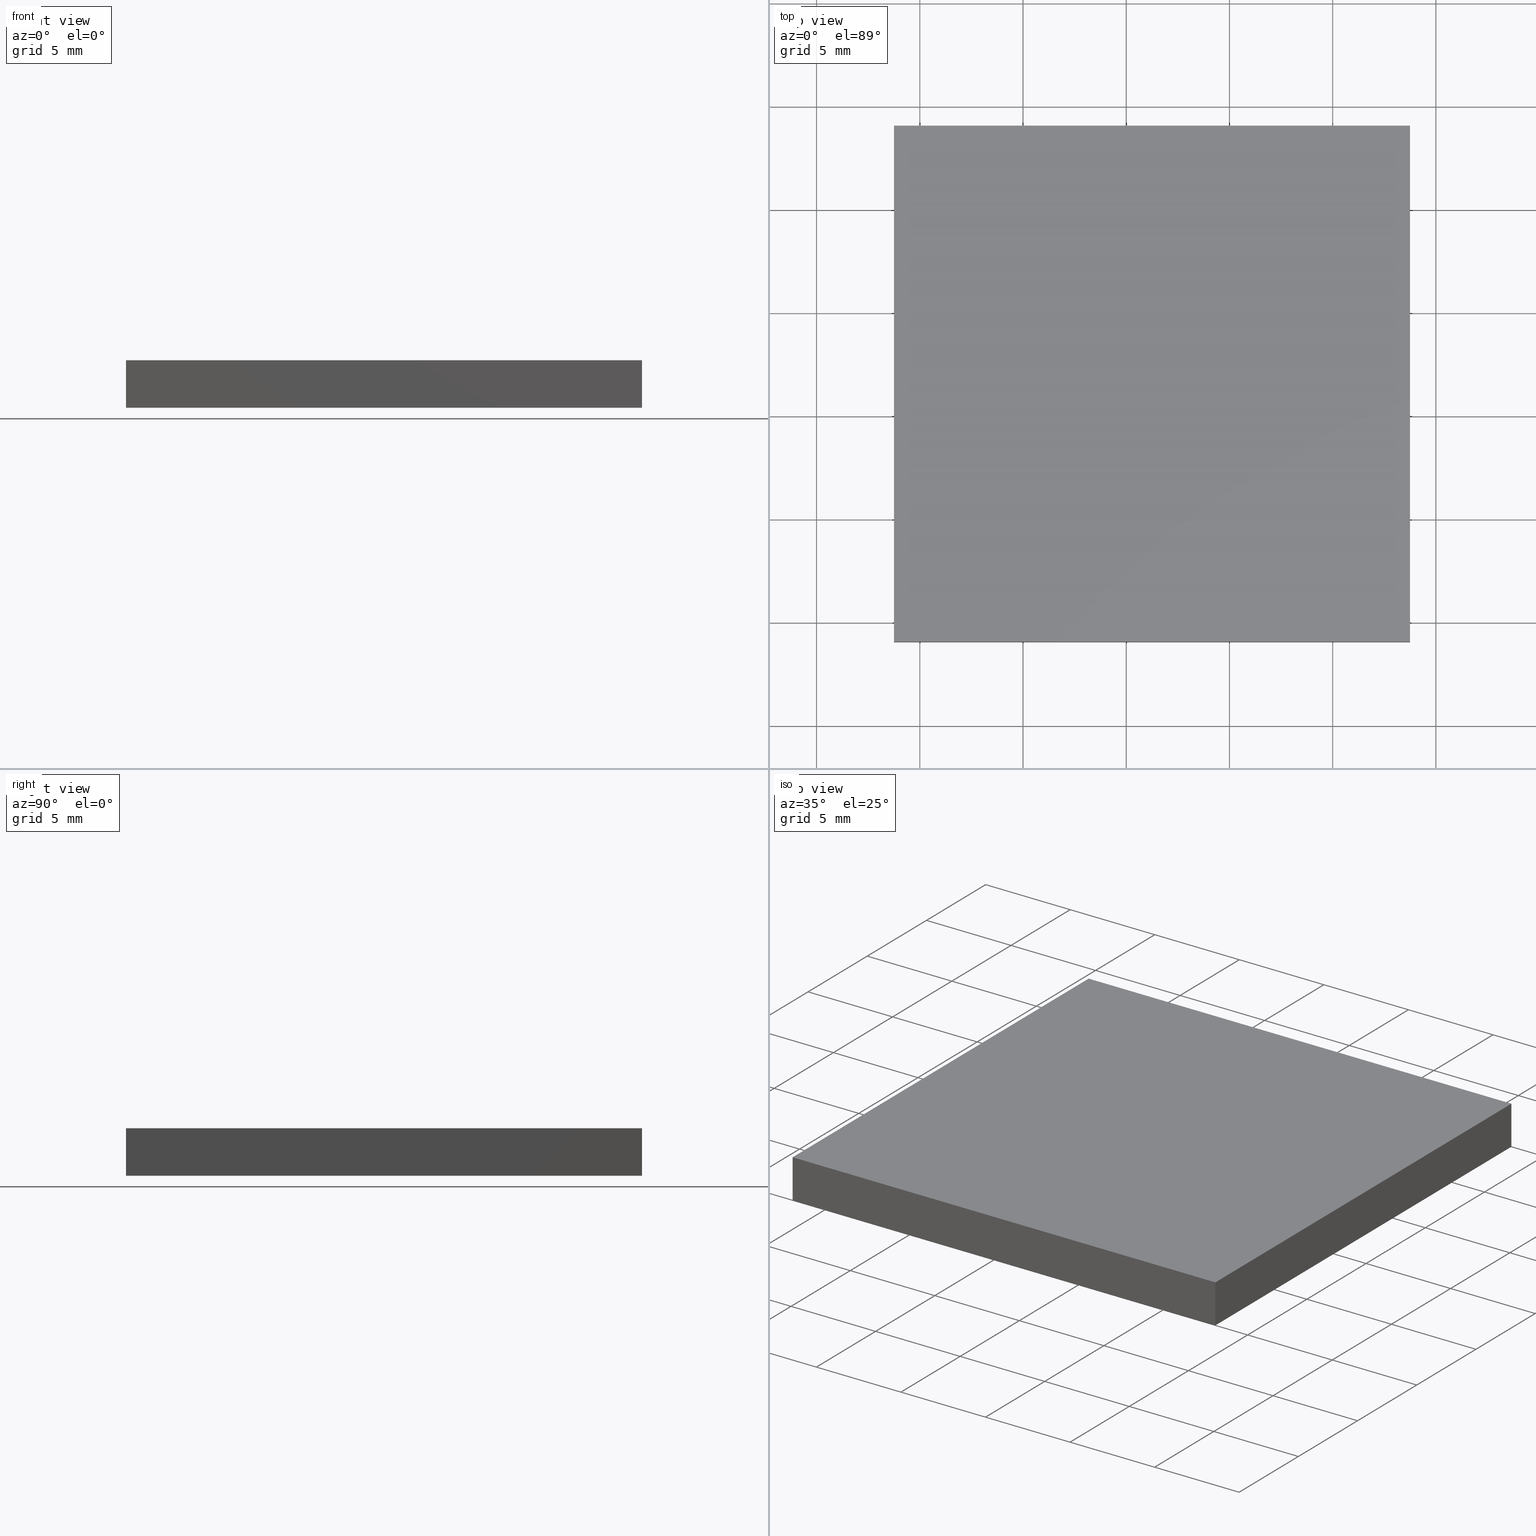
[diagram: canonical four-view strip — front | top / right | iso, engineering-drawing reading convention]
A machine part, canonical four-view strip (front | top / right | iso — engineering-drawing reading convention). The complete STEP part file that produces these views, byte-faithful:
ISO-10303-21;
HEADER;
FILE_DESCRIPTION (( 'STEP AP214' ),
    '1' );
FILE_NAME ('302517.STEP',
    '2019-08-13T06:06:55',
    ( '' ),
    ( '' ),
    'SwSTEP 2.0',
    'SolidWorks 2016',
    '' );
FILE_SCHEMA (( 'AUTOMOTIVE_DESIGN' ));
ENDSEC;

DATA;
#1 = DIRECTION ( 'NONE',  ( 1.000000000000000000, 0.0000000000000000000, 0.0000000000000000000 ) ) ;
#2 = EDGE_CURVE ( 'NONE', #193, #28, #165, .T. ) ;
#3 = EDGE_LOOP ( 'NONE', ( #112, #137, #180, #162 ) ) ;
#4 = VECTOR ( 'NONE', #199, 1000.000000000000000 ) ;
#5 = ORIENTED_EDGE ( 'NONE', *, *, #104, .F. ) ;
#6 = CARTESIAN_POINT ( 'NONE',  ( 113.7479357758850800, 49.06324183452660000, 2.299999999999999800 ) ) ;
#7 = ADVANCED_FACE ( 'NONE', ( #26 ), #86, .F. ) ;
#8 = ORIENTED_EDGE ( 'NONE', *, *, #2, .T. ) ;
#9 = DIRECTION ( 'NONE',  ( 0.0000000000000000000, -0.0000000000000000000, 1.000000000000000000 ) ) ;
#10 = DIRECTION ( 'NONE',  ( -5.551115123125785700E-016, -1.000000000000000000, 0.0000000000000000000 ) ) ;
#11 = CARTESIAN_POINT ( 'NONE',  ( 113.7479357758850700, 74.06324183452659300, 2.299999999999999800 ) ) ;
#12 = DIRECTION ( 'NONE',  ( -1.000000000000000000, -0.0000000000000000000, -0.0000000000000000000 ) ) ;
#13 = ORIENTED_EDGE ( 'NONE', *, *, #144, .T. ) ;
#14 =( NAMED_UNIT ( * ) PLANE_ANGLE_UNIT ( ) SI_UNIT ( $, .RADIAN. ) );
#15 = LINE ( 'NONE', #110, #4 ) ;
#16 = EDGE_LOOP ( 'NONE', ( #160, #146, #176, #5 ) ) ;
#17 = CARTESIAN_POINT ( 'NONE',  ( 88.74793577588509700, 74.06324183452659300, 2.299999999999999800 ) ) ;
#18 = LINE ( 'NONE', #69, #43 ) ;
#19 = AXIS2_PLACEMENT_3D ( 'NONE', #121, #38, #9 ) ;
#20 = ADVANCED_BREP_SHAPE_REPRESENTATION ( '302517', ( #177, #138 ), #178 ) ;
#21 = SURFACE_STYLE_FILL_AREA ( #154 ) ;
#22 = CARTESIAN_POINT ( 'NONE',  ( 88.74793577588509700, 74.06324183452659300, 2.299999999999999800 ) ) ;
#23 = DIRECTION ( 'NONE',  ( -0.0000000000000000000, -0.0000000000000000000, -1.000000000000000000 ) ) ;
#24 = PLANE ( 'NONE',  #128 ) ;
#25 = VECTOR ( 'NONE', #23, 1000.000000000000000 ) ;
#26 = FACE_OUTER_BOUND ( 'NONE', #16, .T. ) ;
#27 = APPLICATION_PROTOCOL_DEFINITION ( 'draft international standard', 'automotive_design', 1998, #79 ) ;
#28 = VERTEX_POINT ( 'NONE', #6 ) ;
#29 =( NAMED_UNIT ( * ) SI_UNIT ( $, .STERADIAN. ) SOLID_ANGLE_UNIT ( ) );
#30 = ORIENTED_EDGE ( 'NONE', *, *, #163, .T. ) ;
#31 = AXIS2_PLACEMENT_3D ( 'NONE', #35, #183, #91 ) ;
#32 = VECTOR ( 'NONE', #169, 1000.000000000000000 ) ;
#33 = DIRECTION ( 'NONE',  ( -0.0000000000000000000, 0.0000000000000000000, 1.000000000000000000 ) ) ;
#34 = PLANE ( 'NONE',  #148 ) ;
#35 = CARTESIAN_POINT ( 'NONE',  ( 0.0000000000000000000, 0.0000000000000000000, 2.299999999999999800 ) ) ;
#36 = DIRECTION ( 'NONE',  ( -5.551115123125785700E-016, -1.000000000000000000, 0.0000000000000000000 ) ) ;
#37 = CLOSED_SHELL ( 'NONE', ( #164, #50, #103, #71, #54, #7 ) ) ;
#38 = DIRECTION ( 'NONE',  ( 0.0000000000000000000, 1.000000000000000000, 0.0000000000000000000 ) ) ;
#39 = VERTEX_POINT ( 'NONE', #46 ) ;
#40 = PRODUCT_CONTEXT ( 'NONE', #201, 'mechanical' ) ;
#41 = SURFACE_STYLE_USAGE ( .BOTH. , #136 ) ;
#42 = COLOUR_RGB ( '',1.000000000000000000, 1.000000000000000000, 1.000000000000000000 ) ;
#43 = VECTOR ( 'NONE', #52, 1000.000000000000000 ) ;
#44 = FACE_OUTER_BOUND ( 'NONE', #152, .T. ) ;
#45 = EDGE_CURVE ( 'NONE', #39, #61, #18, .T. ) ;
#46 = CARTESIAN_POINT ( 'NONE',  ( 113.7479357758850700, 74.06324183452659300, 2.299999999999999800 ) ) ;
#47 = PLANE ( 'NONE',  #31 ) ;
#48 = PRODUCT_DEFINITION_FORMATION_WITH_SPECIFIED_SOURCE ( '�κ�', '', #56, .NOT_KNOWN. ) ;
#49 = VECTOR ( 'NONE', #10, 1000.000000000000000 ) ;
#50 = ADVANCED_FACE ( 'NONE', ( #113 ), #90, .F. ) ;
#51 = ORIENTED_EDGE ( 'NONE', *, *, #150, .T. ) ;
#52 = DIRECTION ( 'NONE',  ( -1.000000000000000000, -0.0000000000000000000, -0.0000000000000000000 ) ) ;
#53 = CARTESIAN_POINT ( 'NONE',  ( 88.74793577588508200, 49.06324183452660000, 0.0000000000000000000 ) ) ;
#54 = ADVANCED_FACE ( 'NONE', ( #158 ), #47, .T. ) ;
#55 = CARTESIAN_POINT ( 'NONE',  ( 113.7479357758850800, 49.06324183452660000, 2.299999999999999800 ) ) ;
#56 = PRODUCT ( '302517', '302517', '', ( #40 ) ) ;
#57 = CARTESIAN_POINT ( 'NONE',  ( 113.7479357758850700, 74.06324183452659300, 2.299999999999999800 ) ) ;
#58 = LINE ( 'NONE', #55, #96 ) ;
#59 = DIRECTION ( 'NONE',  ( 1.000000000000000000, -5.551115123125785700E-016, 0.0000000000000000000 ) ) ;
#60 = VECTOR ( 'NONE', #166, 1000.000000000000000 ) ;
#61 = VERTEX_POINT ( 'NONE', #196 ) ;
#62 =( NAMED_UNIT ( * ) PLANE_ANGLE_UNIT ( ) SI_UNIT ( $, .RADIAN. ) );
#63 = APPLICATION_PROTOCOL_DEFINITION ( 'draft international standard', 'automotive_design', 1998, #201 ) ;
#64 = SURFACE_STYLE_USAGE ( .BOTH. , #157 ) ;
#65 = SURFACE_STYLE_FILL_AREA ( #98 ) ;
#66 = EDGE_CURVE ( 'NONE', #61, #126, #125, .T. ) ;
#67 = LINE ( 'NONE', #11, #60 ) ;
#68 = FACE_OUTER_BOUND ( 'NONE', #3, .T. ) ;
#69 = CARTESIAN_POINT ( 'NONE',  ( 88.74793577588509700, 74.06324183452659300, 2.299999999999999800 ) ) ;
#70 = VERTEX_POINT ( 'NONE', #185 ) ;
#71 = ADVANCED_FACE ( 'NONE', ( #81 ), #24, .F. ) ;
#72 = DIRECTION ( 'NONE',  ( -0.0000000000000000000, -0.0000000000000000000, -1.000000000000000000 ) ) ;
#73 = PLANE ( 'NONE',  #194 ) ;
#74 = ORIENTED_EDGE ( 'NONE', *, *, #104, .T. ) ;
#75 =( LENGTH_UNIT ( ) NAMED_UNIT ( * ) SI_UNIT ( .MILLI., .METRE. ) );
#76 =( GEOMETRIC_REPRESENTATION_CONTEXT ( 3 ) GLOBAL_UNCERTAINTY_ASSIGNED_CONTEXT ( ( #190 ) ) GLOBAL_UNIT_ASSIGNED_CONTEXT ( ( #173, #78, #29 ) ) REPRESENTATION_CONTEXT ( 'NONE', 'WORKASPACE' ) );
#77 = EDGE_CURVE ( 'NONE', #193, #70, #15, .T. ) ;
#78 =( NAMED_UNIT ( * ) PLANE_ANGLE_UNIT ( ) SI_UNIT ( $, .RADIAN. ) );
#79 = APPLICATION_CONTEXT ( 'automotive_design' ) ;
#80 = PRESENTATION_LAYER_ASSIGNMENT (  '', '', ( #184 ) ) ;
#81 = FACE_OUTER_BOUND ( 'NONE', #115, .T. ) ;
#82 = ORIENTED_EDGE ( 'NONE', *, *, #45, .T. ) ;
#83 =( GEOMETRIC_REPRESENTATION_CONTEXT ( 3 ) GLOBAL_UNCERTAINTY_ASSIGNED_CONTEXT ( ( #172 ) ) GLOBAL_UNIT_ASSIGNED_CONTEXT ( ( #139, #14, #140 ) ) REPRESENTATION_CONTEXT ( 'NONE', 'WORKASPACE' ) );
#84 = PRODUCT_DEFINITION_CONTEXT ( 'detailed design', #79, 'design' ) ;
#85 = ORIENTED_EDGE ( 'NONE', *, *, #77, .T. ) ;
#86 = PLANE ( 'NONE',  #116 ) ;
#87 = DIRECTION ( 'NONE',  ( 1.000000000000000000, 0.0000000000000000000, 0.0000000000000000000 ) ) ;
#88 = EDGE_LOOP ( 'NONE', ( #74, #132, #102, #85 ) ) ;
#89 = EDGE_CURVE ( 'NONE', #195, #126, #187, .T. ) ;
#90 = PLANE ( 'NONE',  #19 ) ;
#91 = DIRECTION ( 'NONE',  ( 1.000000000000000000, 0.0000000000000000000, 0.0000000000000000000 ) ) ;
#92 = CARTESIAN_POINT ( 'NONE',  ( 88.74793577588509700, 74.06324183452659300, 0.0000000000000000000 ) ) ;
#93 = DIRECTION ( 'NONE',  ( -1.000000000000000000, -5.551115123125785700E-016, 0.0000000000000000000 ) ) ;
#94 = MECHANICAL_DESIGN_GEOMETRIC_PRESENTATION_REPRESENTATION (  '', ( #184 ), #76 ) ;
#95 = DIRECTION ( 'NONE',  ( 0.0000000000000000000, -0.0000000000000000000, -1.000000000000000000 ) ) ;
#96 = VECTOR ( 'NONE', #135, 1000.000000000000000 ) ;
#97 = ORIENTED_EDGE ( 'NONE', *, *, #77, .F. ) ;
#98 = FILL_AREA_STYLE ('',( #153 ) ) ;
#99 = PRODUCT_RELATED_PRODUCT_CATEGORY ( 'part', '', ( #56 ) ) ;
#100 = EDGE_CURVE ( 'NONE', #159, #195, #101, .T. ) ;
#101 = LINE ( 'NONE', #133, #32 ) ;
#102 = ORIENTED_EDGE ( 'NONE', *, *, #2, .F. ) ;
#103 = ADVANCED_FACE ( 'NONE', ( #68 ), #34, .F. ) ;
#104 = EDGE_CURVE ( 'NONE', #70, #159, #161, .T. ) ;
#105 = LINE ( 'NONE', #198, #49 ) ;
#106 = CARTESIAN_POINT ( 'NONE',  ( 88.74793577588508200, 49.06324183452660000, 2.299999999999999800 ) ) ;
#107 = COLOUR_RGB ( '',1.000000000000000000, 1.000000000000000000, 1.000000000000000000 ) ;
#108 = VECTOR ( 'NONE', #149, 1000.000000000000000 ) ;
#109 = CARTESIAN_POINT ( 'NONE',  ( 113.7479357758850800, 49.06324183452660000, 0.0000000000000000000 ) ) ;
#110 = CARTESIAN_POINT ( 'NONE',  ( 88.74793577588508200, 49.06324183452660000, 2.299999999999999800 ) ) ;
#111 = LINE ( 'NONE', #134, #175 ) ;
#112 = ORIENTED_EDGE ( 'NONE', *, *, #100, .T. ) ;
#113 = FACE_OUTER_BOUND ( 'NONE', #88, .T. ) ;
#114 = VECTOR ( 'NONE', #12, 1000.000000000000000 ) ;
#115 = EDGE_LOOP ( 'NONE', ( #127, #130, #124, #171 ) ) ;
#116 = AXIS2_PLACEMENT_3D ( 'NONE', #147, #33, #131 ) ;
#117 = DIRECTION ( 'NONE',  ( 5.551115123125785700E-016, -1.000000000000000000, 0.0000000000000000000 ) ) ;
#118 = FILL_AREA_STYLE_COLOUR ( '', #107 ) ;
#119 = CARTESIAN_POINT ( 'NONE',  ( 88.74793577588509700, 74.06324183452659300, 2.299999999999999800 ) ) ;
#120 = ORIENTED_EDGE ( 'NONE', *, *, #66, .T. ) ;
#121 = CARTESIAN_POINT ( 'NONE',  ( 88.74793577588508200, 49.06324183452660000, 2.299999999999999800 ) ) ;
#122 = CARTESIAN_POINT ( 'NONE',  ( 113.7479357758850700, 74.06324183452659300, 0.0000000000000000000 ) ) ;
#123 = PRODUCT_DEFINITION_SHAPE ( 'NONE', 'NONE',  #181 ) ;
#124 = ORIENTED_EDGE ( 'NONE', *, *, #45, .F. ) ;
#125 = LINE ( 'NONE', #17, #129 ) ;
#126 = VERTEX_POINT ( 'NONE', #92 ) ;
#127 = ORIENTED_EDGE ( 'NONE', *, *, #89, .T. ) ;
#128 = AXIS2_PLACEMENT_3D ( 'NONE', #22, #200, #95 ) ;
#129 = VECTOR ( 'NONE', #72, 1000.000000000000000 ) ;
#130 = ORIENTED_EDGE ( 'NONE', *, *, #66, .F. ) ;
#131 = DIRECTION ( 'NONE',  ( 1.000000000000000000, 0.0000000000000000000, 0.0000000000000000000 ) ) ;
#132 = ORIENTED_EDGE ( 'NONE', *, *, #143, .F. ) ;
#133 = CARTESIAN_POINT ( 'NONE',  ( 113.7479357758850700, 74.06324183452659300, 0.0000000000000000000 ) ) ;
#134 = CARTESIAN_POINT ( 'NONE',  ( 88.74793577588509700, 74.06324183452659300, 0.0000000000000000000 ) ) ;
#135 = DIRECTION ( 'NONE',  ( -0.0000000000000000000, -0.0000000000000000000, -1.000000000000000000 ) ) ;
#136 = SURFACE_SIDE_STYLE ('',( #65 ) ) ;
#137 = ORIENTED_EDGE ( 'NONE', *, *, #155, .F. ) ;
#138 = AXIS2_PLACEMENT_3D ( 'NONE', #156, #202, #1 ) ;
#139 =( LENGTH_UNIT ( ) NAMED_UNIT ( * ) SI_UNIT ( .MILLI., .METRE. ) );
#140 =( NAMED_UNIT ( * ) SI_UNIT ( $, .STERADIAN. ) SOLID_ANGLE_UNIT ( ) );
#141 =( NAMED_UNIT ( * ) SI_UNIT ( $, .STERADIAN. ) SOLID_ANGLE_UNIT ( ) );
#142 = UNCERTAINTY_MEASURE_WITH_UNIT (LENGTH_MEASURE( 1.000000000000000100E-005 ), #75, 'distance_accuracy_value', 'NONE');
#143 = EDGE_CURVE ( 'NONE', #28, #159, #58, .T. ) ;
#144 = EDGE_CURVE ( 'NONE', #28, #39, #67, .T. ) ;
#145 = MECHANICAL_DESIGN_GEOMETRIC_PRESENTATION_REPRESENTATION (  '', ( #192 ), #83 ) ;
#146 = ORIENTED_EDGE ( 'NONE', *, *, #89, .F. ) ;
#147 = CARTESIAN_POINT ( 'NONE',  ( 0.0000000000000000000, 0.0000000000000000000, 0.0000000000000000000 ) ) ;
#148 = AXIS2_PLACEMENT_3D ( 'NONE', #182, #93, #117 ) ;
#149 = DIRECTION ( 'NONE',  ( 1.000000000000000000, 0.0000000000000000000, 0.0000000000000000000 ) ) ;
#150 = EDGE_CURVE ( 'NONE', #61, #193, #105, .T. ) ;
#151 = CARTESIAN_POINT ( 'NONE',  ( 88.74793577588508200, 49.06324183452660000, 2.299999999999999800 ) ) ;
#152 = EDGE_LOOP ( 'NONE', ( #30, #97, #174, #120 ) ) ;
#153 = FILL_AREA_STYLE_COLOUR ( '', #42 ) ;
#154 = FILL_AREA_STYLE ('',( #118 ) ) ;
#155 = EDGE_CURVE ( 'NONE', #39, #195, #179, .T. ) ;
#156 = CARTESIAN_POINT ( 'NONE',  ( 0.0000000000000000000, 0.0000000000000000000, 0.0000000000000000000 ) ) ;
#157 = SURFACE_SIDE_STYLE ('',( #21 ) ) ;
#158 = FACE_OUTER_BOUND ( 'NONE', #197, .T. ) ;
#159 = VERTEX_POINT ( 'NONE', #109 ) ;
#160 = ORIENTED_EDGE ( 'NONE', *, *, #163, .F. ) ;
#161 = LINE ( 'NONE', #53, #108 ) ;
#162 = ORIENTED_EDGE ( 'NONE', *, *, #143, .T. ) ;
#163 = EDGE_CURVE ( 'NONE', #126, #70, #111, .T. ) ;
#164 = ADVANCED_FACE ( 'NONE', ( #44 ), #73, .F. ) ;
#165 = LINE ( 'NONE', #106, #189 ) ;
#166 = DIRECTION ( 'NONE',  ( -5.551115123125785700E-016, 1.000000000000000000, -0.0000000000000000000 ) ) ;
#167 = CARTESIAN_POINT ( 'NONE',  ( 88.74793577588509700, 74.06324183452659300, 0.0000000000000000000 ) ) ;
#168 = PRESENTATION_LAYER_ASSIGNMENT (  '', '', ( #192 ) ) ;
#169 = DIRECTION ( 'NONE',  ( -5.551115123125785700E-016, 1.000000000000000000, -0.0000000000000000000 ) ) ;
#170 = PRESENTATION_STYLE_ASSIGNMENT (( #41 ) ) ;
#171 = ORIENTED_EDGE ( 'NONE', *, *, #155, .T. ) ;
#172 = UNCERTAINTY_MEASURE_WITH_UNIT (LENGTH_MEASURE( 1.000000000000000100E-005 ), #139, 'distance_accuracy_value', 'NONE');
#173 =( LENGTH_UNIT ( ) NAMED_UNIT ( * ) SI_UNIT ( .MILLI., .METRE. ) );
#174 = ORIENTED_EDGE ( 'NONE', *, *, #150, .F. ) ;
#175 = VECTOR ( 'NONE', #36, 1000.000000000000000 ) ;
#176 = ORIENTED_EDGE ( 'NONE', *, *, #100, .F. ) ;
#177 = MANIFOLD_SOLID_BREP ( '͹̨-����1', #37 ) ;
#178 =( GEOMETRIC_REPRESENTATION_CONTEXT ( 3 ) GLOBAL_UNCERTAINTY_ASSIGNED_CONTEXT ( ( #142 ) ) GLOBAL_UNIT_ASSIGNED_CONTEXT ( ( #75, #62, #141 ) ) REPRESENTATION_CONTEXT ( 'NONE', 'WORKASPACE' ) );
#179 = LINE ( 'NONE', #57, #25 ) ;
#180 = ORIENTED_EDGE ( 'NONE', *, *, #144, .F. ) ;
#181 = PRODUCT_DEFINITION ( 'δ֪', '', #48, #84 ) ;
#182 = CARTESIAN_POINT ( 'NONE',  ( 113.7479357758850700, 74.06324183452659300, 2.299999999999999800 ) ) ;
#183 = DIRECTION ( 'NONE',  ( -0.0000000000000000000, 0.0000000000000000000, 1.000000000000000000 ) ) ;
#184 = STYLED_ITEM ( 'NONE', ( #188 ), #177 ) ;
#185 = CARTESIAN_POINT ( 'NONE',  ( 88.74793577588508200, 49.06324183452660000, 0.0000000000000000000 ) ) ;
#186 = DIRECTION ( 'NONE',  ( 5.551115123125785700E-016, 1.000000000000000000, 0.0000000000000000000 ) ) ;
#187 = LINE ( 'NONE', #167, #114 ) ;
#188 = PRESENTATION_STYLE_ASSIGNMENT (( #64 ) ) ;
#189 = VECTOR ( 'NONE', #87, 1000.000000000000000 ) ;
#190 = UNCERTAINTY_MEASURE_WITH_UNIT (LENGTH_MEASURE( 1.000000000000000100E-005 ), #173, 'distance_accuracy_value', 'NONE');
#191 = SHAPE_DEFINITION_REPRESENTATION ( #123, #20 ) ;
#192 = STYLED_ITEM ( 'NONE', ( #170 ), #20 ) ;
#193 = VERTEX_POINT ( 'NONE', #151 ) ;
#194 = AXIS2_PLACEMENT_3D ( 'NONE', #119, #59, #186 ) ;
#195 = VERTEX_POINT ( 'NONE', #122 ) ;
#196 = CARTESIAN_POINT ( 'NONE',  ( 88.74793577588509700, 74.06324183452659300, 2.299999999999999800 ) ) ;
#197 = EDGE_LOOP ( 'NONE', ( #51, #8, #13, #82 ) ) ;
#198 = CARTESIAN_POINT ( 'NONE',  ( 88.74793577588509700, 74.06324183452659300, 2.299999999999999800 ) ) ;
#199 = DIRECTION ( 'NONE',  ( -0.0000000000000000000, -0.0000000000000000000, -1.000000000000000000 ) ) ;
#200 = DIRECTION ( 'NONE',  ( 0.0000000000000000000, -1.000000000000000000, 0.0000000000000000000 ) ) ;
#201 = APPLICATION_CONTEXT ( 'automotive_design' ) ;
#202 = DIRECTION ( 'NONE',  ( 0.0000000000000000000, 0.0000000000000000000, 1.000000000000000000 ) ) ;
ENDSEC;
END-ISO-10303-21;
